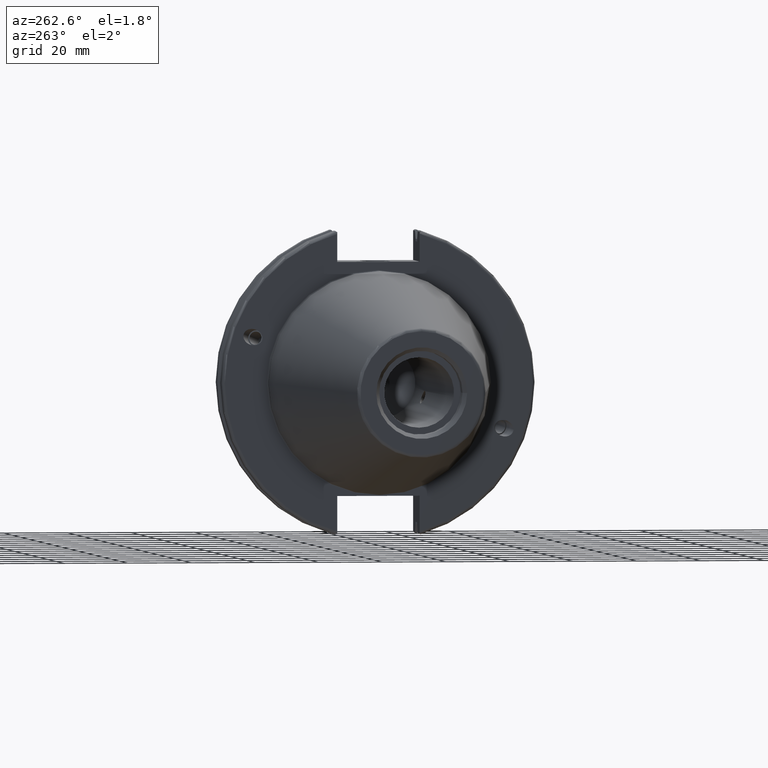
[diagram: clean part render]
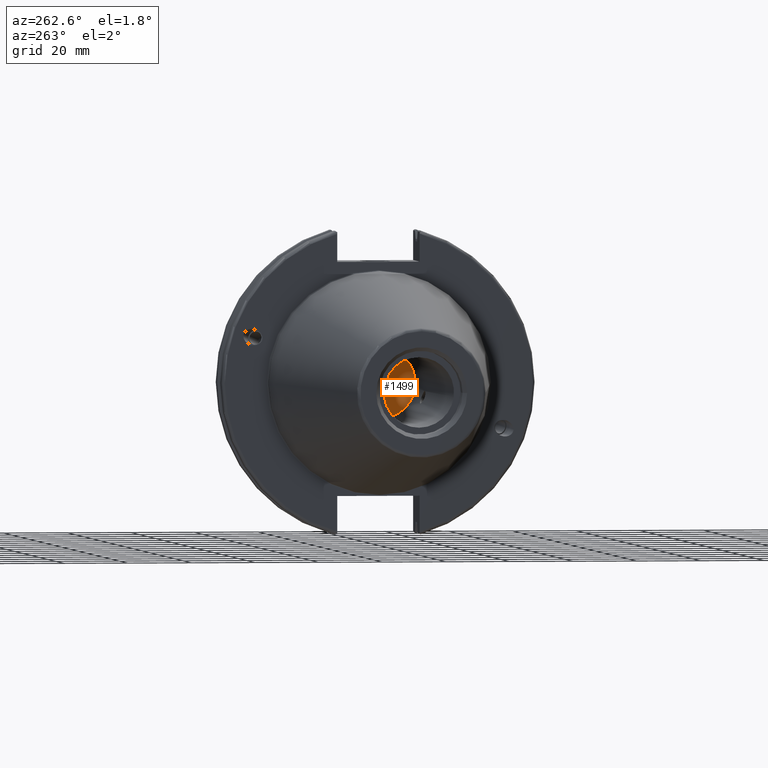
[diagram: same view with one face highlighted and labeled with its STEP entity id]
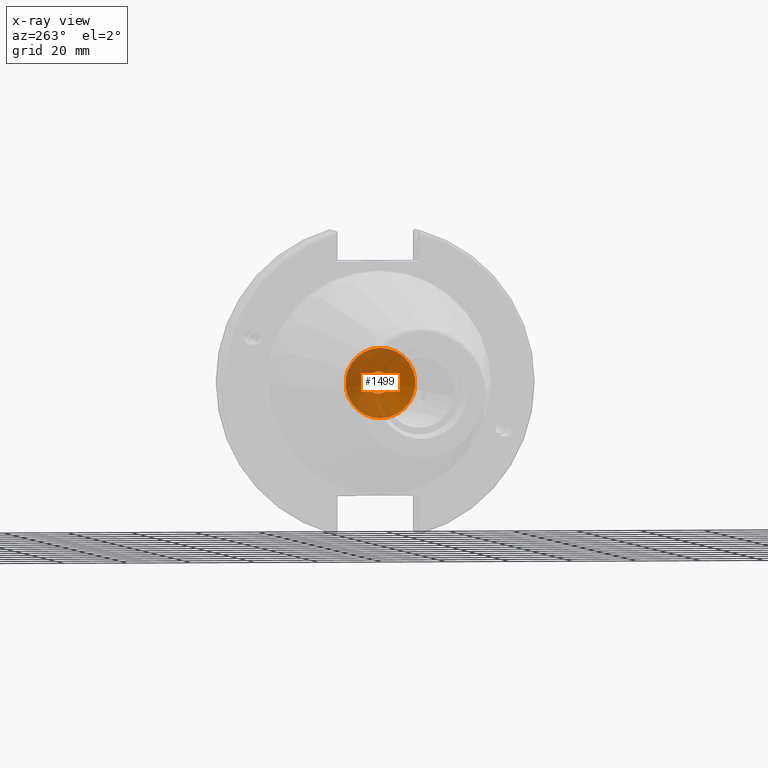
[diagram: x-ray of the same camera — body ghosted, the highlighted face saturated]
A machine part, auxiliary view. The second image highlights one B-rep face of the part: STEP entity #1499.
The next image is the same camera in x-ray: the body ghosted, the highlighted face saturated — about 66% of this face is hidden behind the body in this view.
In plain terms, the highlighted conical surface has half-angle 59 deg.
Its self-contained STEP definition (entity closure, byte-faithful):
#139=CONICAL_SURFACE('',#1683,5.49275,1.02974425867665);
#189=FACE_OUTER_BOUND('',#285,.T.);
#285=EDGE_LOOP('',(#1178,#1179,#1180,#1181,#1182));
#373=LINE('',#2591,#454);
#454=VECTOR('',#2034,5.49275);
#502=CIRCLE('',#1570,3.4585);
#503=CIRCLE('',#1571,3.4585);
#555=CIRCLE('',#1684,10.9855);
#591=VERTEX_POINT('',#2243);
#592=VERTEX_POINT('',#2245);
#669=VERTEX_POINT('',#2589);
#743=EDGE_CURVE('',#592,#591,#502,.T.);
#744=EDGE_CURVE('',#591,#592,#503,.T.);
#856=EDGE_CURVE('',#669,#669,#555,.T.);
#857=EDGE_CURVE('',#669,#592,#373,.T.);
#1178=ORIENTED_EDGE('',*,*,#856,.T.);
#1179=ORIENTED_EDGE('',*,*,#857,.T.);
#1180=ORIENTED_EDGE('',*,*,#743,.T.);
#1181=ORIENTED_EDGE('',*,*,#744,.T.);
#1182=ORIENTED_EDGE('',*,*,#857,.F.);
#1499=ADVANCED_FACE('',(#189),#139,.F.);
#1570=AXIS2_PLACEMENT_3D('',#2246,#1771,#1772);
#1571=AXIS2_PLACEMENT_3D('',#2247,#1773,#1774);
#1683=AXIS2_PLACEMENT_3D('',#2588,#2030,#2031);
#1684=AXIS2_PLACEMENT_3D('',#2590,#2032,#2033);
#1771=DIRECTION('center_axis',(1.,0.,0.));
#1772=DIRECTION('ref_axis',(0.,0.,-1.));
#1773=DIRECTION('center_axis',(1.,0.,0.));
#1774=DIRECTION('ref_axis',(0.,0.,-1.));
#2030=DIRECTION('center_axis',(-1.,0.,0.));
#2031=DIRECTION('ref_axis',(0.,0.,1.));
#2032=DIRECTION('center_axis',(-1.,0.,0.));
#2033=DIRECTION('ref_axis',(0.,0.,1.));
#2034=DIRECTION('',(0.515038074910054,1.04972719113862E-16,0.857167300702112));
#2243=CARTESIAN_POINT('',(2.92267787942045,-4.23544095485112E-16,3.4585));
#2245=CARTESIAN_POINT('',(2.92267787942045,-4.23544095485112E-16,-3.4585));
#2246=CARTESIAN_POINT('Origin',(2.92267787942045,0.,0.));
#2247=CARTESIAN_POINT('Origin',(2.92267787942045,0.,0.));
#2588=CARTESIAN_POINT('Origin',(1.70037716516363,0.,0.));
#2589=CARTESIAN_POINT('',(-1.6,-1.34533574120333E-15,-10.9855));
#2590=CARTESIAN_POINT('Origin',(-1.6,0.,0.));
#2591=CARTESIAN_POINT('',(1.70037716516363,-6.72667870601663E-16,-5.49275));